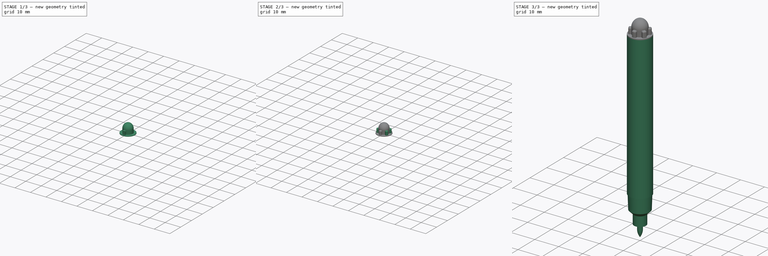
[diagram: build sequence overview — one tinted view per stage of 3, left to right]
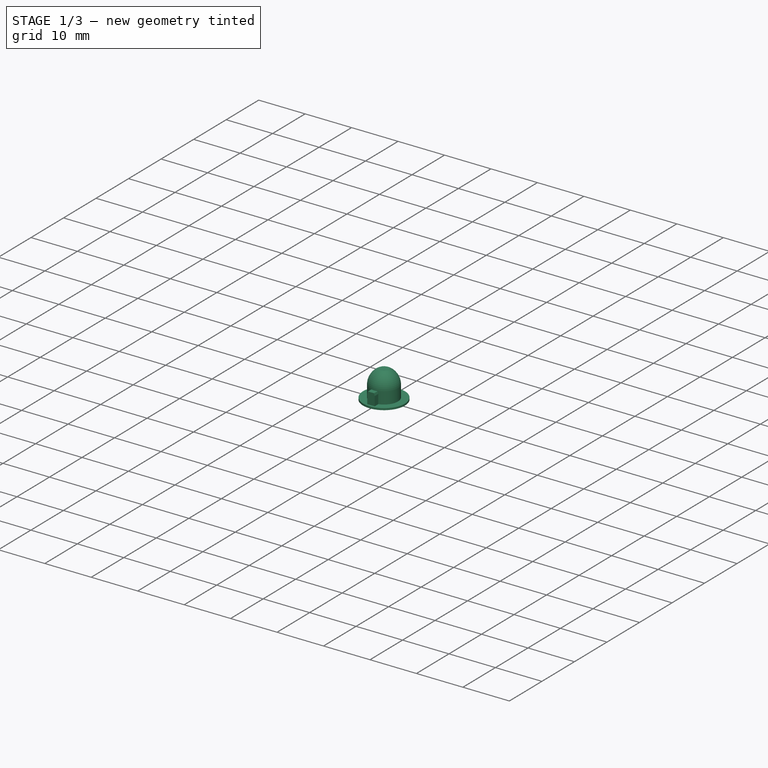
[diagram: stage 1 of 3 — iso view after this stage's code; geometry added in this stage tinted green]
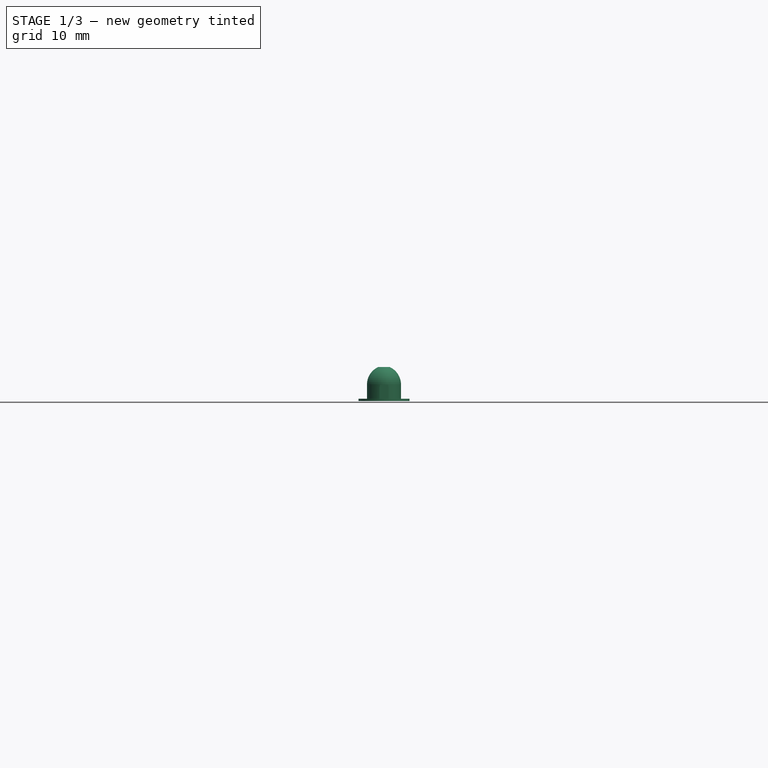
[diagram: stage 1 of 3 — front view after this stage's code; geometry added in this stage tinted green]
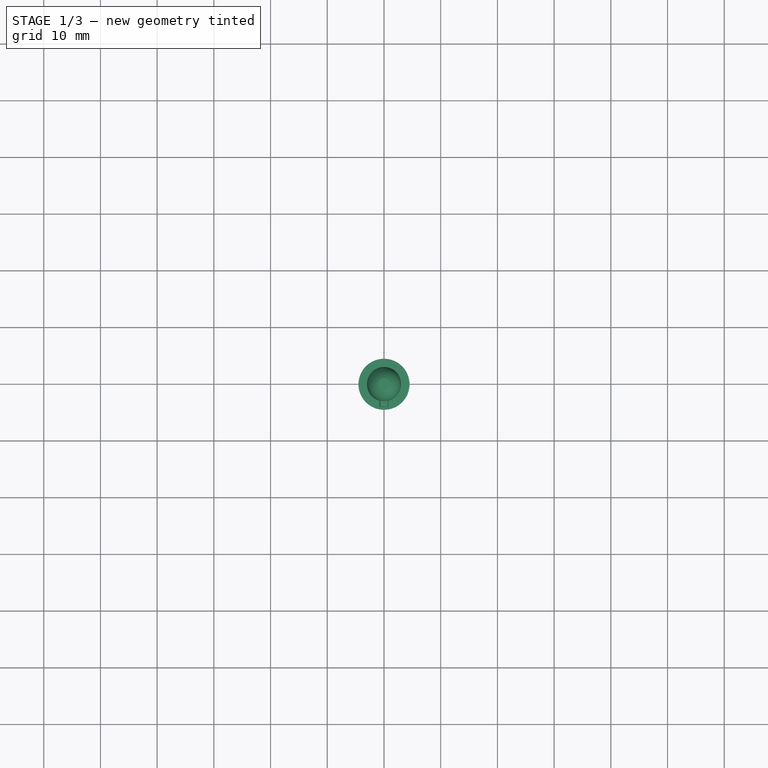
[diagram: stage 1 of 3 — top view after this stage's code; geometry added in this stage tinted green]
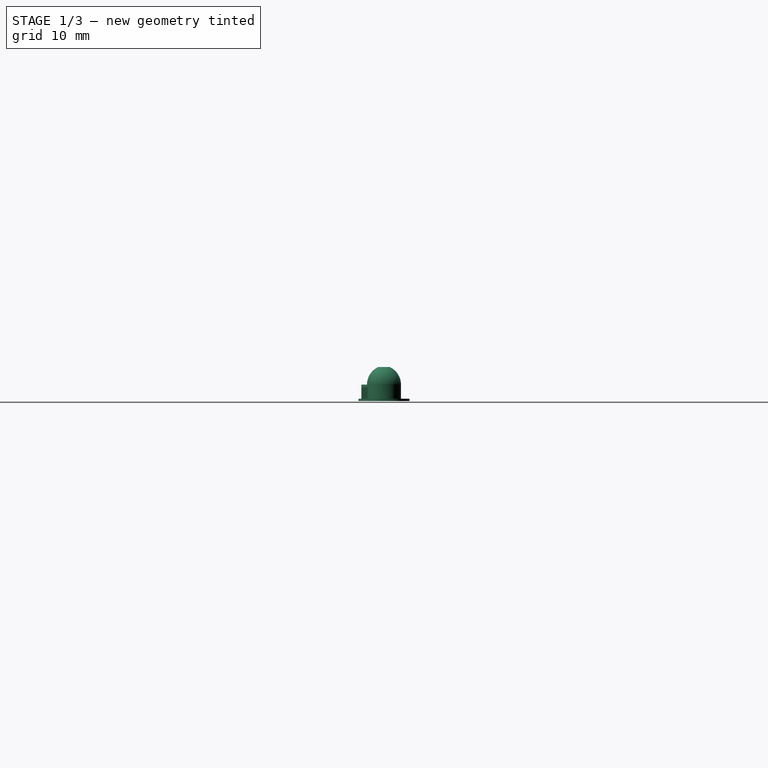
[diagram: stage 1 of 3 — right view after this stage's code; geometry added in this stage tinted green]
FCSTD DOCUMENT  (FreeCAD 0.21R33771 (Git))
Label: vibro_monster_marker_v1
License: CERN Open Hardware Licence permissive
LicenseURL: https://cern-ohl.web.cern.ch/
objects: Sketcher::SketchObject×4, PartDesign::Revolution×3, PartDesign::Body×3, PartDesign::Pad×1, PartDesign::PolarPattern×1, PartDesign::Fillet×1
note: 18 computed .brp shape members not serialized (recipe doc carries the construction recipe); baked Part::Feature solids carry a one-line shape summary decoded from their .brp

FEATURE [PartDesign::Body] Body001  label="tip"
  Group = -> [Sketch001,Revolution001]
  Origin = -> Origin001
  Tip = -> Revolution001
FEATURE [Sketcher::SketchObject] Sketch002
  FullyConstrained = true
  MapMode = 5
  Placement = pos=(0,0,0) rot=(1,0,0;1.5708rad)
  Support = -> [XZ_Plane002]
  sketch-geometry (7):
    g0: LineSegment StartX=0 StartY=76.5 StartZ=0 EndX=-4.5 EndY=76.5 EndZ=0
    g1: LineSegment StartX=-4.5 StartY=76.5 StartZ=0 EndX=-4.5 EndY=76.9 EndZ=0
    g2: LineSegment StartX=-4.5 StartY=76.9 StartZ=0 EndX=-3 EndY=76.9 EndZ=0
    g3: LineSegment StartX=-3 StartY=76.9 StartZ=0 EndX=-3 EndY=79.4 EndZ=0
    g4: ArcOfCircle CenterX=0.4025 CenterY=79.4 CenterZ=0 NormalX=0 NormalY=0 NormalZ=1 AngleXU=0 Radius=3.4025 StartAngle=1.99566 EndAngle=3.14159
    g5: LineSegment StartX=-1 StartY=82.5 StartZ=0 EndX=0 EndY=82.5 EndZ=0
    g6: LineSegment StartX=0 StartY=82.5 StartZ=0 EndX=0 EndY=76.5 EndZ=0
  constraints (21):
    c: PointOnObject(g0,g-2)
    c: Horizontal(g0)
    c: Coincident(g0,g1)
    c: Vertical(g1)
    c: Coincident(g1,g2)
    c: Horizontal(g2)
    c: Coincident(g2,g3)
    c: Vertical(g3)
    c: PointOnObject(g5,g-2)
    c: Horizontal(g5)
    c: Coincident(g5,g6)
    c: Coincident(g6,g0)
    c: DistanceX(g0,g0) = 4.5
    c: DistanceY(g1,g1) = 0.4
    c: DistanceX(g2,g2) = 1.5
    c: DistanceY(g6,g6) = 6
    c: DistanceY(g-1,g0) = 76.5
    c: DistanceX(g5,g5) = 1
    c: Coincident(g4,g5)
    c: Tangent(g4,g3) = 1.5708
    c: DistanceY(g3,g3) = 2.5
FEATURE [PartDesign::Revolution] Revolution002
  Angle = 360
  Axis = (0,2e-16,1)
  Base = (0,0,0)
  Placement = pos=(0,0,0) rot=(1,0,0;1.5708rad)
  Profile = -> Sketch002
  ReferenceAxis = -> Sketch002 [V_Axis]
FEATURE [Sketcher::SketchObject] Sketch003
  ExternalGeometry = -> [Revolution002]
  FullyConstrained = true
  MapMode = 5
  Placement = pos=(0,0,0) rot=(1,0,0;1.5708rad)
  Support = -> [XZ_Plane002]
  sketch-geometry (6):
    g0: LineSegment StartX=-0.8 StartY=76.9 StartZ=0 EndX=0.8 EndY=76.9 EndZ=0
    g1: LineSegment StartX=0.8 StartY=76.9 StartZ=0 EndX=0.8 EndY=78.9 EndZ=0
    g2: LineSegment StartX=0.8 StartY=78.9 StartZ=0 EndX=0.666025 EndY=79.4 EndZ=0
    g3: LineSegment StartX=0.666025 StartY=79.4 StartZ=0 EndX=-0.666025 EndY=79.4 EndZ=0
    g4: LineSegment StartX=-0.666025 StartY=79.4 StartZ=0 EndX=-0.8 EndY=78.9 EndZ=0
    g5: LineSegment StartX=-0.8 StartY=78.9 StartZ=0 EndX=-0.8 EndY=76.9 EndZ=0
  constraints (16):
    c: Coincident(g0,g1)
    c: Vertical(g1)
    c: Coincident(g1,g2)
    c: Coincident(g2,g3)
    c: Coincident(g3,g4)
    c: Coincident(g4,g5)
    c: Coincident(g5,g0)
    c: Vertical(g5)
    c: Symmetric(g0,g0,g-2)
    c: PointOnObject(g0,g-3)
    c: Symmetric(g3,g2,g-2)
    c: DistanceX(g0,g0) = 1.6
    c: Angle(g5,g4) = 2.87979
    c: Equal(g5,g1)
    c: DistanceY(g1,g1) = 2
    c: PointOnObject(g3,g-4)
FEATURE [PartDesign::Pad] Pad
  BaseFeature = -> Revolution002
  Direction = (0,-1,2e-16)
  Length = 4
  Length2 = 10
  Placement = pos=(0,0,0) rot=(1,0,0;1.5708rad)
  Profile = -> Sketch003
  ReferenceAxis = -> Sketch003 [N_Axis]
  Type = 0
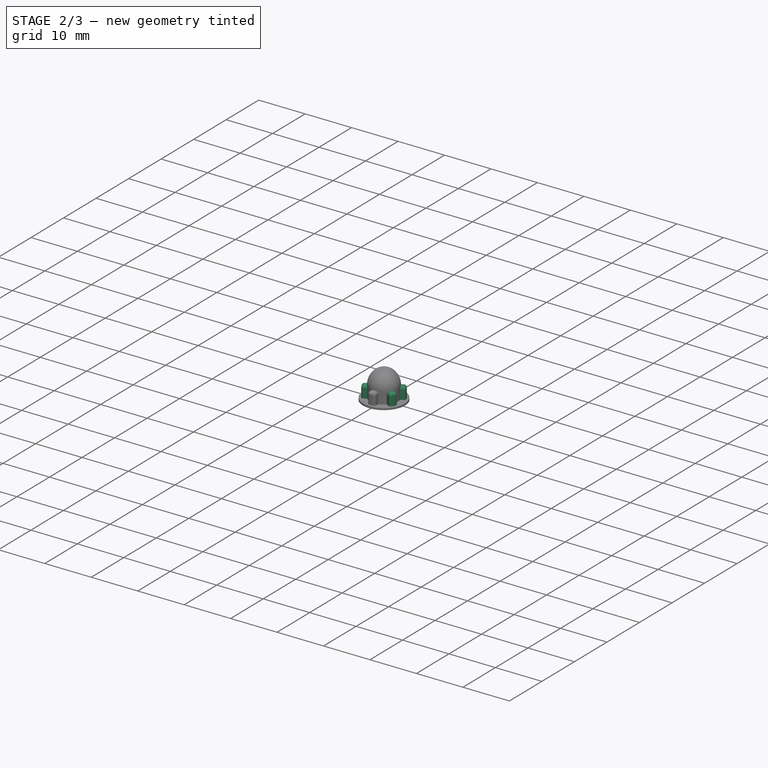
[diagram: stage 2 of 3 — iso view after this stage's code; geometry added in this stage tinted green]
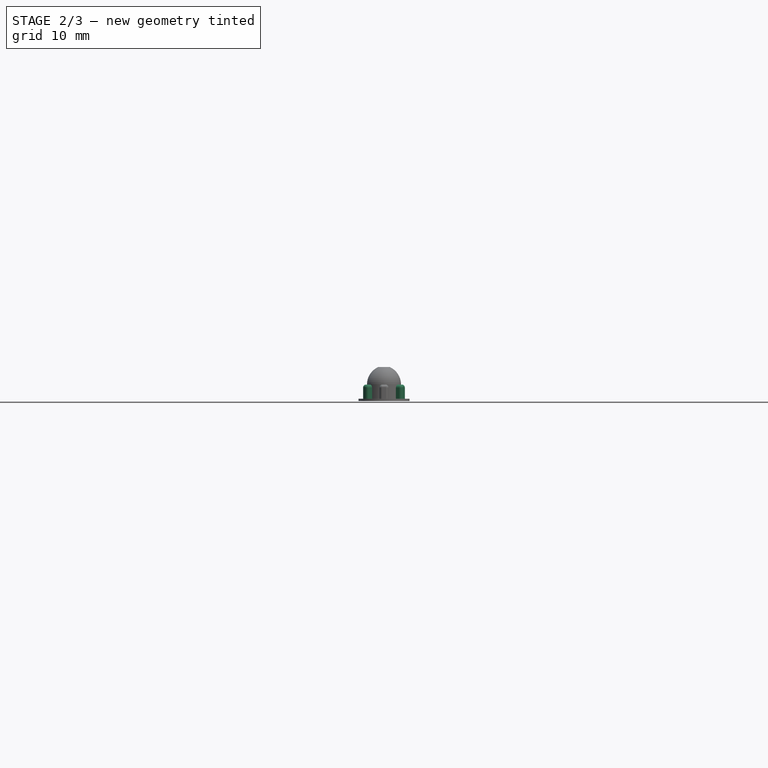
[diagram: stage 2 of 3 — front view after this stage's code; geometry added in this stage tinted green]
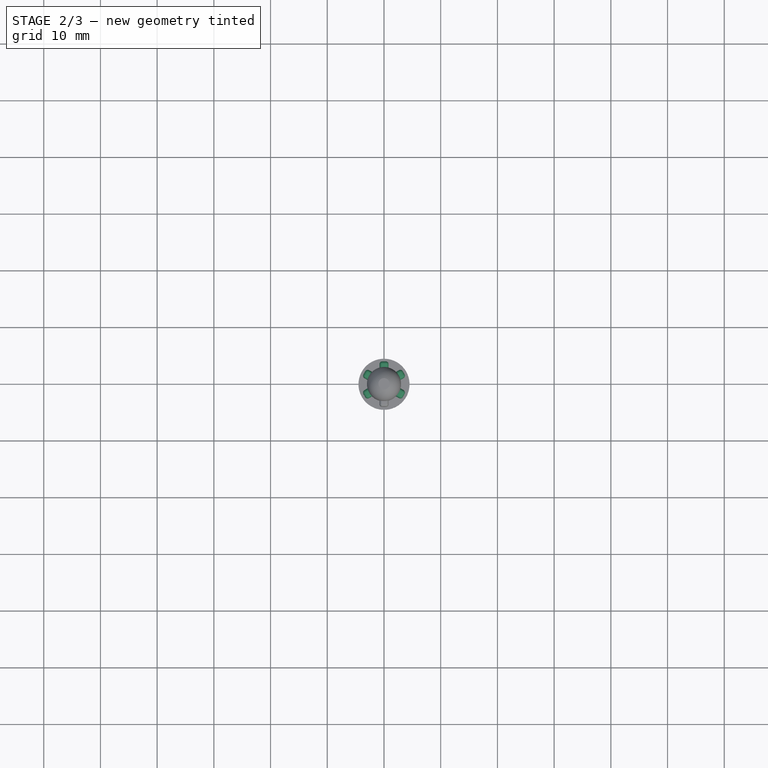
[diagram: stage 2 of 3 — top view after this stage's code; geometry added in this stage tinted green]
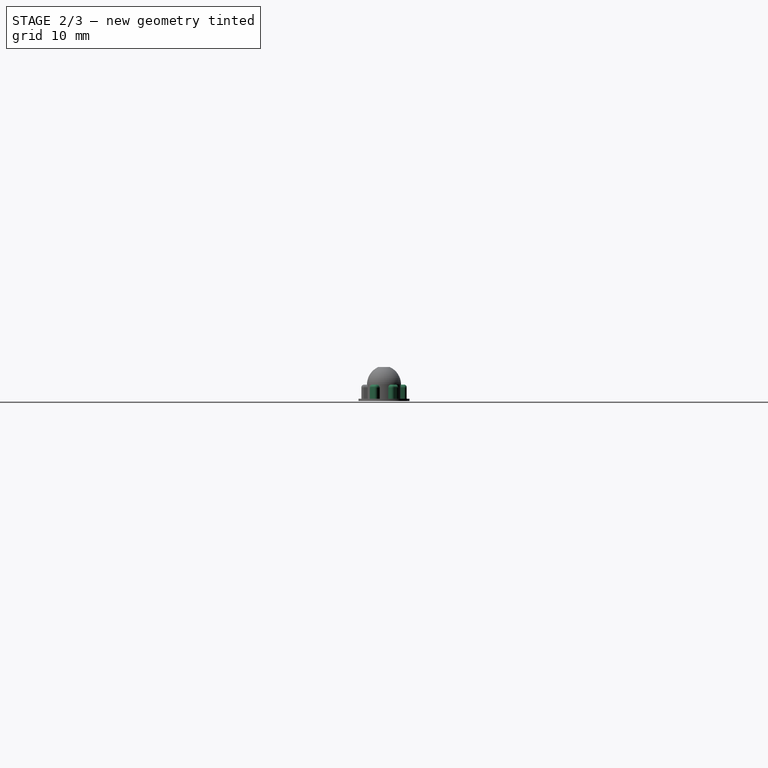
[diagram: stage 2 of 3 — right view after this stage's code; geometry added in this stage tinted green]
FEATURE [PartDesign::PolarPattern] PolarPattern
  Angle = 360
  Axis = -> Sketch003 [V_Axis]
  BaseFeature = -> Pad
  Occurrences = 6
  Originals = -> [Pad]
  Placement = pos=(0,0,0) rot=(1,0,0;1.5708rad)
FEATURE [PartDesign::Fillet] Fillet
  Base = -> PolarPattern [Edge97,Edge98,Edge96,Edge95,Edge93,Edge121,Edge122,Edge100,Edge94,Edge83,Edge84,Edge85,Edge86,Edge81,Edge82,Edge119,Edge120,Edge88,Edge33,Edge38,Edge37,Edge36,Edge35,Edge40,Edge112,Edge111,Edge34,Edge47,Edge48,Edge49,Edge50,Edge45,Edge46,Edge113,Edge114,Edge52,Edge57,Edge62,Edge61,Edge60,+14 more]
  BaseFeature = -> PolarPattern
  Placement = pos=(0,0,0) rot=(1,0,0;1.5708rad)
  Radius = 0.5
  SupportTransform = false
  UseAllEdges = false
FEATURE [PartDesign::Body] Body002  label="end_cap"
  Group = -> [Sketch002,Revolution002,Sketch003,Pad,PolarPattern,Fillet]
  Origin = -> Origin002
  Tip = -> Fillet
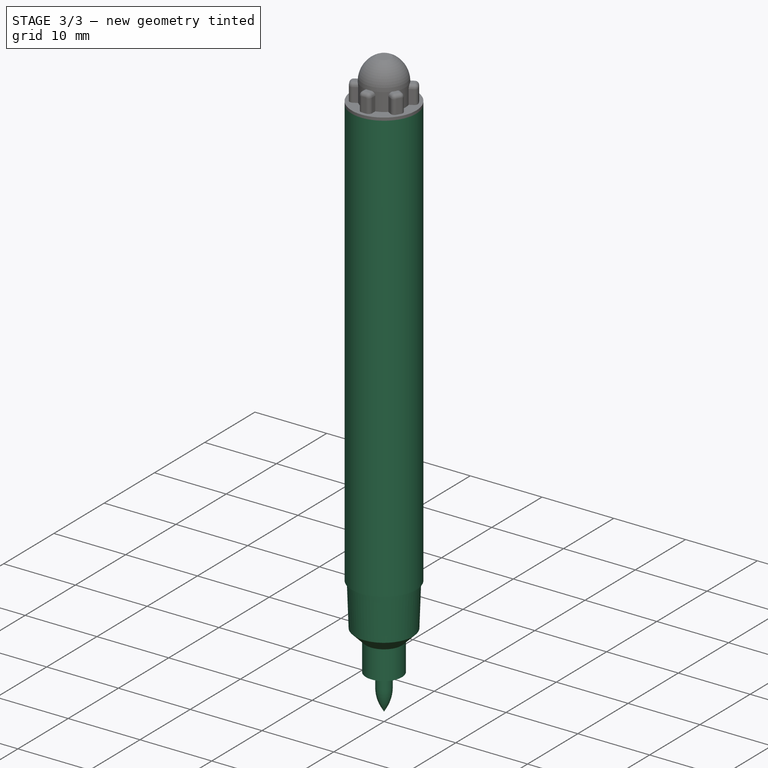
[diagram: stage 3 of 3 — iso view after this stage's code; geometry added in this stage tinted green]
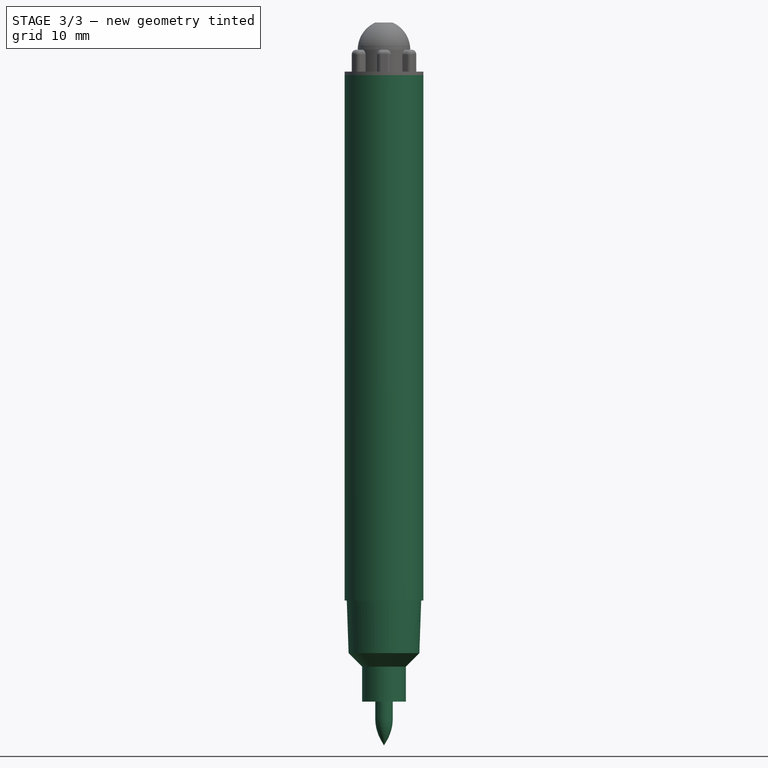
[diagram: stage 3 of 3 — front view after this stage's code; geometry added in this stage tinted green]
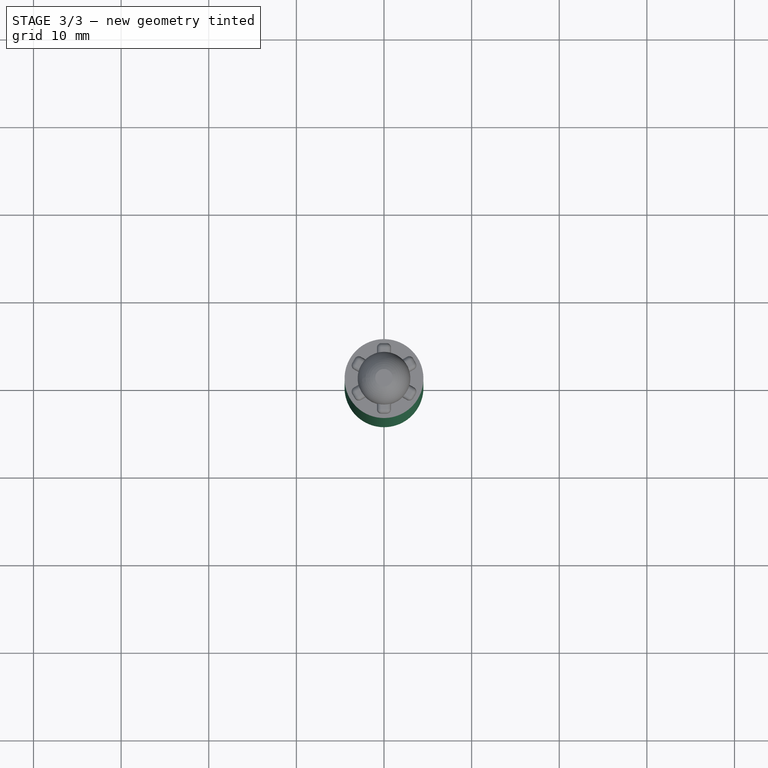
[diagram: stage 3 of 3 — top view after this stage's code; geometry added in this stage tinted green]
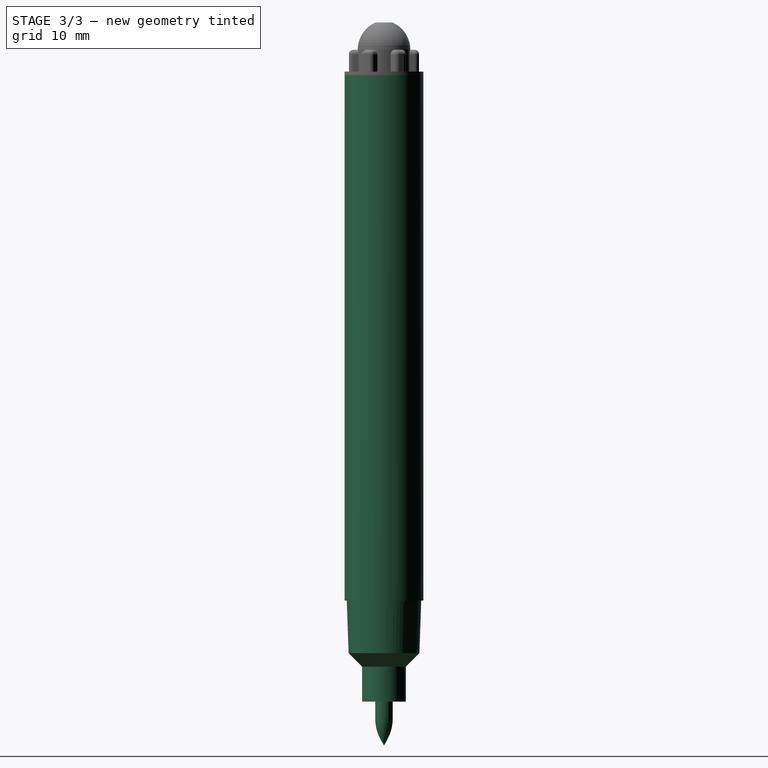
[diagram: stage 3 of 3 — right view after this stage's code; geometry added in this stage tinted green]
FEATURE [Sketcher::SketchObject] Sketch
  FullyConstrained = true
  MapMode = 5
  Placement = pos=(0,0,0) rot=(1,0,0;1.5708rad)
  Support = -> [XZ_Plane]
  sketch-geometry (9):
    g0: LineSegment StartX=0 StartY=76.5 StartZ=0 EndX=-4.5 EndY=76.5 EndZ=0
    g1: LineSegment StartX=-4.5 StartY=76.5 StartZ=0 EndX=-4.5 EndY=16.5369 EndZ=0
    g2: LineSegment StartX=-4.5 StartY=16.5369 StartZ=0 EndX=-4.25 EndY=16.5369 EndZ=0
    g3: LineSegment StartX=-4.25 StartY=16.5369 StartZ=0 EndX=-4.0406 EndY=10.5406 EndZ=0
    g4: LineSegment StartX=-4.0406 StartY=10.5406 StartZ=0 EndX=-2.5 EndY=9 EndZ=0
    g5: LineSegment StartX=-2.5 StartY=9 StartZ=0 EndX=-2.5 EndY=5 EndZ=0
    g6: LineSegment StartX=-2.5 StartY=5 StartZ=0 EndX=0 EndY=5 EndZ=0
    g7: LineSegment StartX=0 StartY=5 StartZ=0 EndX=0 EndY=76.5 EndZ=0
    g8: LineSegment StartX=0 StartY=5 StartZ=0 EndX=0 EndY=0 EndZ=0
  constraints (26):
    c: PointOnObject(g0,g-2)
    c: Horizontal(g0)
    c: Coincident(g0,g1)
    c: Vertical(g1)
    c: Coincident(g1,g2)
    c: Horizontal(g2)
    c: Coincident(g2,g3)
    c: Coincident(g3,g4)
    c: Coincident(g4,g5)
    c: Vertical(g5)
    c: Coincident(g5,g6)
    c: PointOnObject(g6,g-2)
    c: Horizontal(g6)
    c: Coincident(g6,g7)
    c: Coincident(g7,g0)
    c: DistanceX(g0,g0) = 4.5
    c: DistanceX(g2,g2) = 0.25
    c: DistanceX(g6,g6) = 2.5
    c: DistanceY(g5,g5) = 4
    c: Distance(g3) = 6
    c: Angle(g4,g5) = 2.35619
    c: Angle(g2,g3) = 1.6057
    c: Coincident(g8,g6)
    c: Coincident(g-1,g8)
    c: DistanceY(g8,g8) = 5
    c: DistanceY(g8,g0) = 76.5
FEATURE [PartDesign::Revolution] Revolution
  Angle = 360
  Axis = (0,2e-16,1)
  Base = (0,0,0)
  Placement = pos=(0,0,0) rot=(1,0,0;1.5708rad)
  Profile = -> Sketch
  ReferenceAxis = -> Sketch [V_Axis]
FEATURE [PartDesign::Body] Body
  Group = -> [Sketch,Revolution]
  Origin = -> Origin
  Tip = -> Revolution
FEATURE [Sketcher::SketchObject] Sketch001
  FullyConstrained = true
  MapMode = 5
  Placement = pos=(0,0,0) rot=(0.57735,0.57735,0.57735;2.0944rad)
  Support = -> [YZ_Plane001]
  sketch-geometry (5):
    g0: LineSegment StartX=0 StartY=5 StartZ=0 EndX=0 EndY=0 EndZ=0
    g1: LineSegment StartX=0 StartY=0 StartZ=0 EndX=-0.330127 EndY=0.571797 EndZ=0
    g2: ArcOfCircle CenterX=4 CenterY=3.0718 CenterZ=0 NormalX=0 NormalY=0 NormalZ=1 AngleXU=0 Radius=5 StartAngle=3.14159 EndAngle=3.66519
    g3: LineSegment StartX=-1 StartY=3.0718 StartZ=0 EndX=-1 EndY=5 EndZ=0
    g4: LineSegment StartX=-1 StartY=5 StartZ=0 EndX=0 EndY=5 EndZ=0
  constraints (13):
    c: PointOnObject(g0,g-2)
    c: Coincident(g0,g-1)
    c: Coincident(g0,g1)
    c: Tangent(g1,g2) = 1.5708
    c: Vertical(g3)
    c: Coincident(g3,g4)
    c: Coincident(g4,g0)
    c: Horizontal(g4)
    c: DistanceY(g0,g0) = 5
    c: DistanceX(g4,g4) = 1
    c: Tangent(g2,g3) = 1.5708
    c: Angle(g0,g1) = 0.523599
    c: Radius(g2) = 5
FEATURE [PartDesign::Revolution] Revolution001
  Angle = 360
  Axis = (-2e-16,3e-16,1)
  Base = (0,0,0)
  Placement = pos=(0,0,0) rot=(0.57735,0.57735,0.57735;2.0944rad)
  Profile = -> Sketch001
  ReferenceAxis = -> Sketch001 [V_Axis]
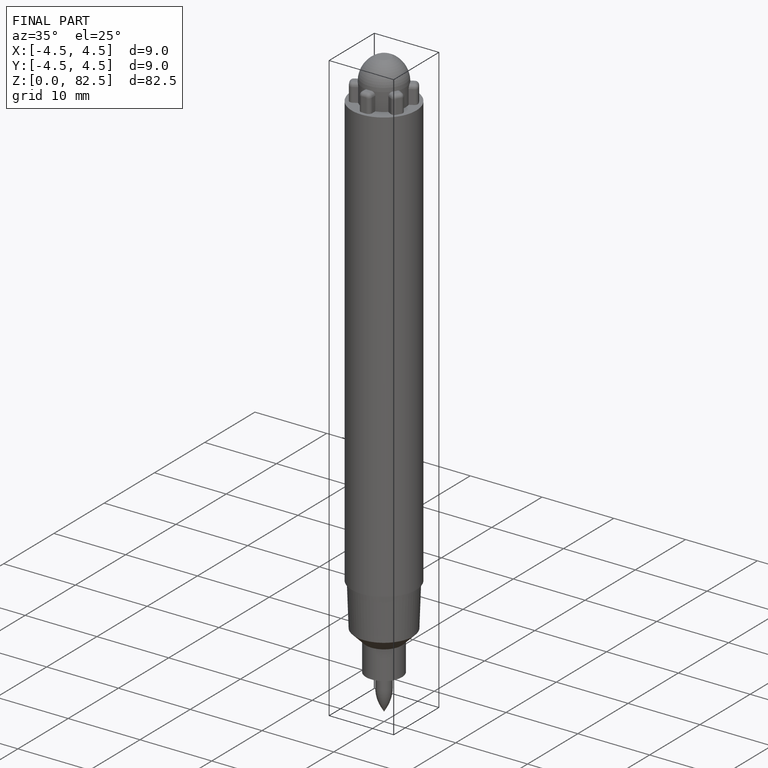
[diagram: finished part — iso view with bounding-box wireframe]
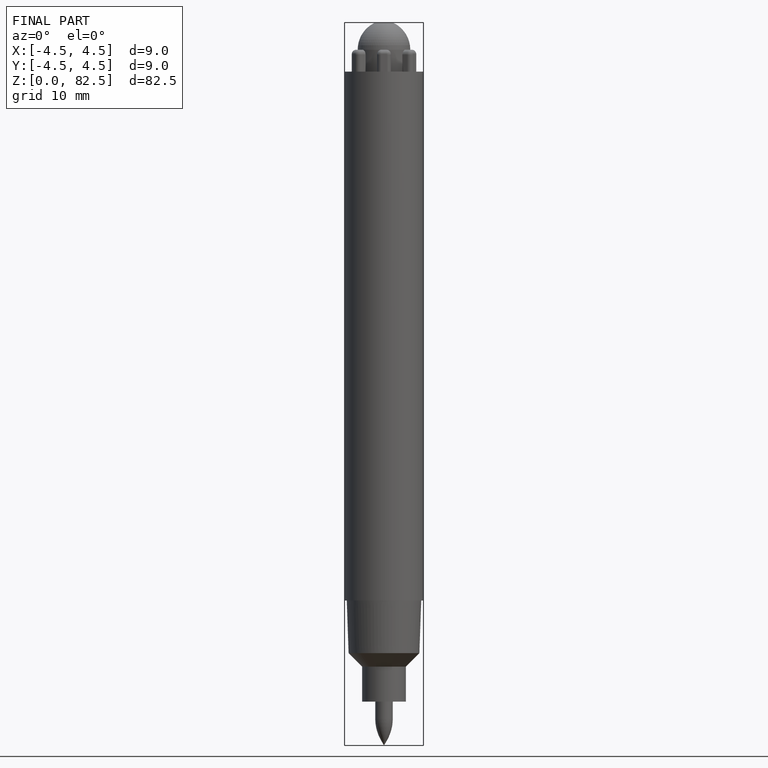
[diagram: finished part — front view with bounding-box wireframe]
